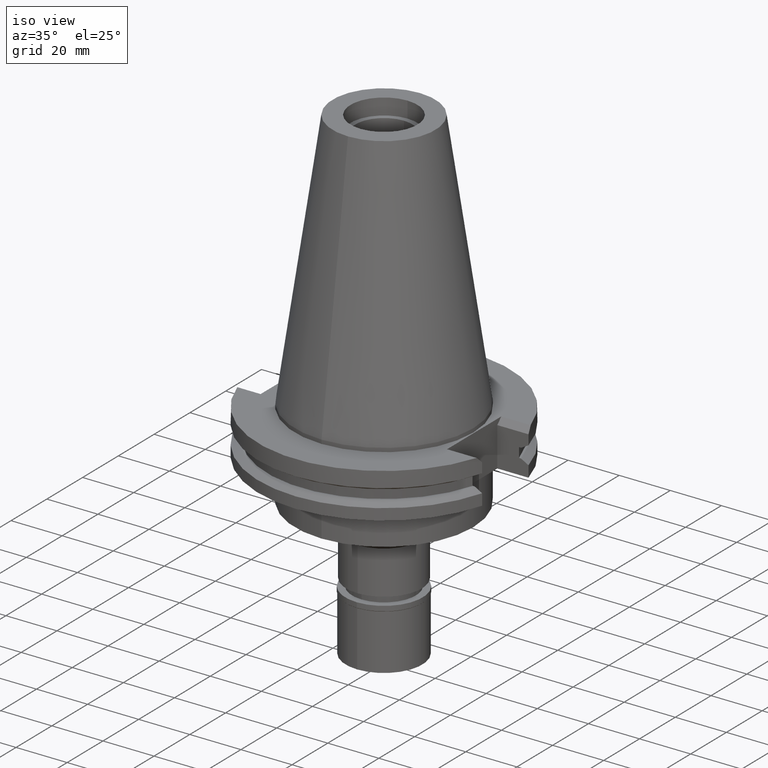
[diagram: clean part render]
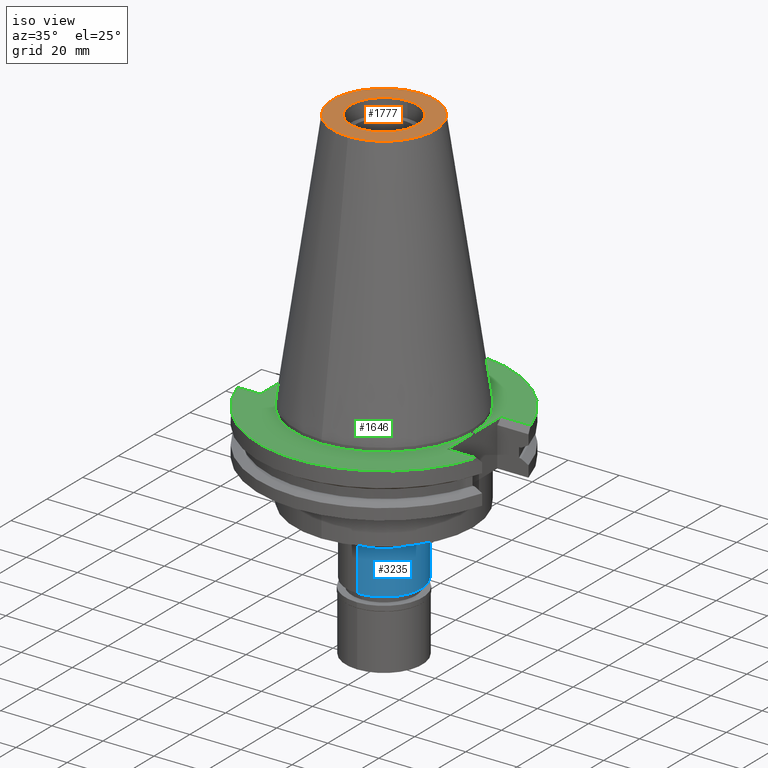
[diagram: same view with three faces highlighted in distinct colors, each labeled with its STEP entity id]
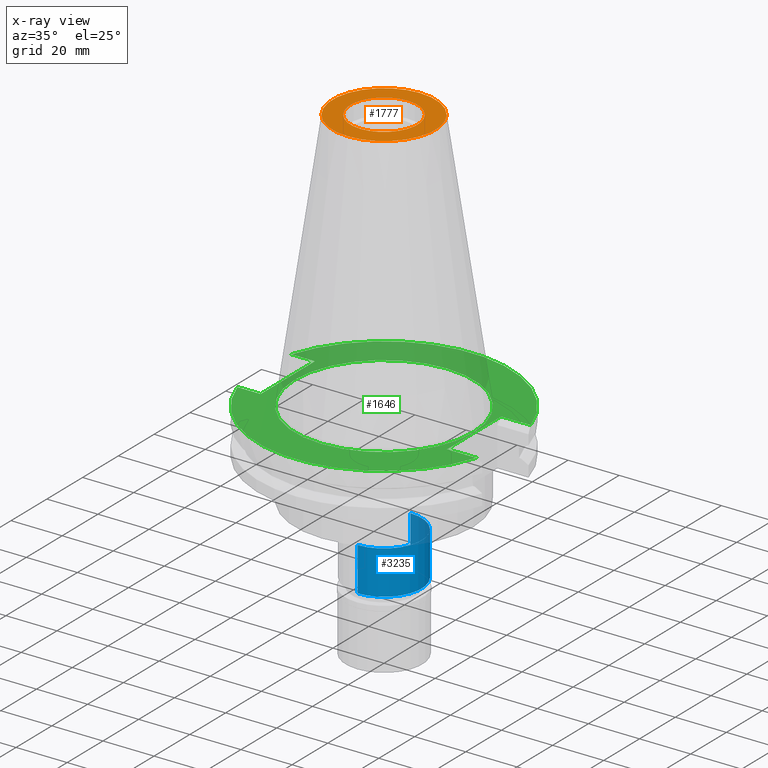
[diagram: x-ray of the same camera — body ghosted, the three highlighted faces saturated]
A machine part, iso view with three faces highlighted in distinct colors.
The next image is the same camera in x-ray (body ghosted, the three faces saturated) — at least one of them is partly hidden behind the body in this view.
Their STEP definitions:

[orange] entity #1777 — the highlighted planar face has unit normal (0, 0, -1).
#139 = AXIS2_PLACEMENT_3D ( 'NONE', #1916, #184, #172 ) ;
#146 = DIRECTION ( 'NONE',  ( 0.0000000000000000000, 0.0000000000000000000, -1.000000000000000000 ) ) ;
#172 = DIRECTION ( 'NONE',  ( 0.0000000000000000000, -1.000000000000000000, 0.0000000000000000000 ) ) ;
#184 = DIRECTION ( 'NONE',  ( 0.0000000000000000000, 0.0000000000000000000, -1.000000000000000000 ) ) ;
#189 = CIRCLE ( 'NONE', #2076, 20.10832422388000040 ) ;
#429 = CARTESIAN_POINT ( 'NONE',  ( 0.0000000000000000000, 1.846767373113999857E-14, 101.5999999999999943 ) ) ;
#492 = AXIS2_PLACEMENT_3D ( 'NONE', #3041, #1745, #699 ) ;
#555 = ORIENTED_EDGE ( 'NONE', *, *, #2346, .F. ) ;
#618 = AXIS2_PLACEMENT_3D ( 'NONE', #429, #146, #1201 ) ;
#699 = DIRECTION ( 'NONE',  ( 0.0000000000000000000, 1.000000000000000000, 0.0000000000000000000 ) ) ;
#865 = EDGE_CURVE ( 'NONE', #2394, #2873, #1958, .T. ) ;
#880 = EDGE_LOOP ( 'NONE', ( #946, #2479 ) ) ;
#929 = FACE_OUTER_BOUND ( 'NONE', #2639, .T. ) ;
#944 = CARTESIAN_POINT ( 'NONE',  ( 0.0000000000000000000, 1.846767373113999857E-14, 101.5999999999999943 ) ) ;
#946 = ORIENTED_EDGE ( 'NONE', *, *, #865, .F. ) ;
#1036 = CARTESIAN_POINT ( 'NONE',  ( 0.0000000000000000000, 2.579412320703999880E-14, 101.5999999999999943 ) ) ;
#1096 = ORIENTED_EDGE ( 'NONE', *, *, #1203, .F. ) ;
#1201 = DIRECTION ( 'NONE',  ( 0.0000000000000000000, -1.000000000000000000, 0.0000000000000000000 ) ) ;
#1203 = EDGE_CURVE ( 'NONE', #2157, #2324, #3035, .T. ) ;
#1290 = AXIS2_PLACEMENT_3D ( 'NONE', #1036, #2053, #3070 ) ;
#1745 = DIRECTION ( 'NONE',  ( 0.0000000000000000000, 0.0000000000000000000, 1.000000000000000000 ) ) ;
#1777 = ADVANCED_FACE ( 'NONE', ( #929, #3198 ), #1955, .F. ) ;
#1916 = CARTESIAN_POINT ( 'NONE',  ( 0.0000000000000000000, 2.468887947081000065E-14, 101.5999999999999943 ) ) ;
#1932 = CARTESIAN_POINT ( 'NONE',  ( 0.0000000000000000000, 20.10832422388000040, 101.5999999999999943 ) ) ;
#1950 = CARTESIAN_POINT ( 'NONE',  ( 0.0000000000000000000, 13.11500000000000021, 101.5999999999999943 ) ) ;
#1955 = PLANE ( 'NONE',  #139 ) ;
#1958 = CIRCLE ( 'NONE', #492, 13.11500000000000021 ) ;
#2053 = DIRECTION ( 'NONE',  ( 0.0000000000000000000, 0.0000000000000000000, 1.000000000000000000 ) ) ;
#2076 = AXIS2_PLACEMENT_3D ( 'NONE', #944, #2941, #2207 ) ;
#2157 = VERTEX_POINT ( 'NONE', #2838 ) ;
#2185 = CARTESIAN_POINT ( 'NONE',  ( 0.0000000000000000000, -13.11500000000000021, 101.5999999999999943 ) ) ;
#2207 = DIRECTION ( 'NONE',  ( 0.0000000000000000000, 1.000000000000000000, 0.0000000000000000000 ) ) ;
#2324 = VERTEX_POINT ( 'NONE', #1932 ) ;
#2346 = EDGE_CURVE ( 'NONE', #2324, #2157, #189, .T. ) ;
#2394 = VERTEX_POINT ( 'NONE', #1950 ) ;
#2479 = ORIENTED_EDGE ( 'NONE', *, *, #2658, .F. ) ;
#2639 = EDGE_LOOP ( 'NONE', ( #555, #1096 ) ) ;
#2658 = EDGE_CURVE ( 'NONE', #2873, #2394, #3110, .T. ) ;
#2838 = CARTESIAN_POINT ( 'NONE',  ( 0.0000000000000000000, -20.10832422388000040, 101.5999999999999943 ) ) ;
#2873 = VERTEX_POINT ( 'NONE', #2185 ) ;
#2941 = DIRECTION ( 'NONE',  ( 0.0000000000000000000, 0.0000000000000000000, -1.000000000000000000 ) ) ;
#3035 = CIRCLE ( 'NONE', #618, 20.10832422388000040 ) ;
#3041 = CARTESIAN_POINT ( 'NONE',  ( 0.0000000000000000000, 2.579412320703999880E-14, 101.5999999999999943 ) ) ;
#3070 = DIRECTION ( 'NONE',  ( 0.0000000000000000000, -1.000000000000000000, 0.0000000000000000000 ) ) ;
#3110 = CIRCLE ( 'NONE', #1290, 13.11500000000000021 ) ;
#3198 = FACE_BOUND ( 'NONE', #880, .T. ) ;

[blue] entity #3235 — the highlighted cylindrical surface (partial cylindrical patch) has radius 14.75 mm, axis along (0, 0, -1).
#44 = DIRECTION ( 'NONE',  ( 0.0000000000000000000, 0.0000000000000000000, -1.000000000000000000 ) ) ;
#52 = ORIENTED_EDGE ( 'NONE', *, *, #2405, .T. ) ;
#107 = DIRECTION ( 'NONE',  ( 0.0000000000000000000, 0.0000000000000000000, -1.000000000000000000 ) ) ;
#121 = ORIENTED_EDGE ( 'NONE', *, *, #209, .F. ) ;
#167 = DIRECTION ( 'NONE',  ( 0.0000000000000000000, 0.0000000000000000000, 1.000000000000000000 ) ) ;
#196 = CARTESIAN_POINT ( 'NONE',  ( 0.0000000000000000000, 14.75000000000000000, -45.00000000000000000 ) ) ;
#209 = EDGE_CURVE ( 'NONE', #2548, #2393, #1938, .T. ) ;
#294 = CARTESIAN_POINT ( 'NONE',  ( 0.0000000000000000000, 2.579412320703999880E-14, 110.6250000000000000 ) ) ;
#387 = CARTESIAN_POINT ( 'NONE',  ( 0.0000000000000000000, 14.75000000000000000, -62.10000000000000142 ) ) ;
#406 = CIRCLE ( 'NONE', #2491, 14.75000000000000000 ) ;
#653 = VECTOR ( 'NONE', #107, 1000.000000000000000 ) ;
#706 = VECTOR ( 'NONE', #2992, 1000.000000000000000 ) ;
#889 = AXIS2_PLACEMENT_3D ( 'NONE', #294, #44, #1363 ) ;
#941 = EDGE_LOOP ( 'NONE', ( #1953, #2963, #52, #121 ) ) ;
#971 = DIRECTION ( 'NONE',  ( 0.0000000000000000000, 1.000000000000000000, 0.0000000000000000000 ) ) ;
#1233 = CARTESIAN_POINT ( 'NONE',  ( 0.0000000000000000000, 0.0000000000000000000, -45.00000000000000000 ) ) ;
#1317 = EDGE_CURVE ( 'NONE', #2548, #1529, #406, .T. ) ;
#1320 = CARTESIAN_POINT ( 'NONE',  ( 0.0000000000000000000, -14.75000000000000000, -62.10000000000000142 ) ) ;
#1363 = DIRECTION ( 'NONE',  ( 0.0000000000000000000, -1.000000000000000000, 0.0000000000000000000 ) ) ;
#1529 = VERTEX_POINT ( 'NONE', #2015 ) ;
#1548 = CIRCLE ( 'NONE', #2981, 14.75000000000000000 ) ;
#1938 = LINE ( 'NONE', #2722, #653 ) ;
#1953 = ORIENTED_EDGE ( 'NONE', *, *, #1317, .T. ) ;
#1974 = LINE ( 'NONE', #3243, #706 ) ;
#2015 = CARTESIAN_POINT ( 'NONE',  ( 0.0000000000000000000, -14.75000000000000000, -45.00000000000000000 ) ) ;
#2128 = VERTEX_POINT ( 'NONE', #1320 ) ;
#2232 = DIRECTION ( 'NONE',  ( 0.0000000000000000000, 0.0000000000000000000, -1.000000000000000000 ) ) ;
#2393 = VERTEX_POINT ( 'NONE', #387 ) ;
#2405 = EDGE_CURVE ( 'NONE', #2128, #2393, #1548, .T. ) ;
#2491 = AXIS2_PLACEMENT_3D ( 'NONE', #1233, #2232, #971 ) ;
#2548 = VERTEX_POINT ( 'NONE', #196 ) ;
#2695 = CARTESIAN_POINT ( 'NONE',  ( 0.0000000000000000000, 2.579412320703999880E-14, -62.10000000000000142 ) ) ;
#2722 = CARTESIAN_POINT ( 'NONE',  ( 0.0000000000000000000, 14.75000000000000000, -45.00000000000000000 ) ) ;
#2850 = CYLINDRICAL_SURFACE ( 'NONE', #889, 14.75000000000000000 ) ;
#2901 = EDGE_CURVE ( 'NONE', #1529, #2128, #1974, .T. ) ;
#2917 = FACE_OUTER_BOUND ( 'NONE', #941, .T. ) ;
#2963 = ORIENTED_EDGE ( 'NONE', *, *, #2901, .T. ) ;
#2981 = AXIS2_PLACEMENT_3D ( 'NONE', #2695, #167, #3208 ) ;
#2992 = DIRECTION ( 'NONE',  ( 0.0000000000000000000, 0.0000000000000000000, -1.000000000000000000 ) ) ;
#3208 = DIRECTION ( 'NONE',  ( 0.0000000000000000000, -1.000000000000000000, 0.0000000000000000000 ) ) ;
#3235 = ADVANCED_FACE ( 'NONE', ( #2917 ), #2850, .T. ) ;
#3243 = CARTESIAN_POINT ( 'NONE',  ( 0.0000000000000000000, -14.75000000000000000, -45.00000000000000000 ) ) ;

[green] entity #1646 — the highlighted planar face has unit normal (0, 0, -1).
#45 = ORIENTED_EDGE ( 'NONE', *, *, #1428, .F. ) ;
#63 = DIRECTION ( 'NONE',  ( 0.0000000000000000000, -1.000000000000000000, 0.0000000000000000000 ) ) ;
#150 = ORIENTED_EDGE ( 'NONE', *, *, #2808, .F. ) ;
#170 = VERTEX_POINT ( 'NONE', #287 ) ;
#287 = CARTESIAN_POINT ( 'NONE',  ( -37.67999999999999972, 15.15499999999999936, -1.500000000000000000 ) ) ;
#297 = CARTESIAN_POINT ( 'NONE',  ( 35.27000000000000313, 15.15499999999999936, -1.500000000000000000 ) ) ;
#323 = LINE ( 'NONE', #2881, #1973 ) ;
#352 = ORIENTED_EDGE ( 'NONE', *, *, #2708, .F. ) ;
#372 = VERTEX_POINT ( 'NONE', #3000 ) ;
#462 = CIRCLE ( 'NONE', #2073, 49.21249999999999858 ) ;
#471 = VERTEX_POINT ( 'NONE', #2288 ) ;
#495 = ORIENTED_EDGE ( 'NONE', *, *, #2817, .T. ) ;
#554 = LINE ( 'NONE', #829, #758 ) ;
#603 = ORIENTED_EDGE ( 'NONE', *, *, #1213, .F. ) ;
#660 = CARTESIAN_POINT ( 'NONE',  ( 35.27000000000000313, -15.15499999999999936, -1.500000000000000000 ) ) ;
#693 = CARTESIAN_POINT ( 'NONE',  ( 0.0000000000000000000, 2.579412320703999880E-14, -1.500000000000000000 ) ) ;
#703 = ORIENTED_EDGE ( 'NONE', *, *, #1283, .F. ) ;
#749 = EDGE_LOOP ( 'NONE', ( #703, #150 ) ) ;
#758 = VECTOR ( 'NONE', #1078, 1000.000000000000000 ) ;
#829 = CARTESIAN_POINT ( 'NONE',  ( -37.67999999999999972, 15.15499999999999936, -1.500000000000000000 ) ) ;
#830 = VERTEX_POINT ( 'NONE', #660 ) ;
#836 = DIRECTION ( 'NONE',  ( -1.000000000000000000, 1.107685286787000022E-14, 0.0000000000000000000 ) ) ;
#860 = DIRECTION ( 'NONE',  ( 0.0000000000000000000, 0.0000000000000000000, -1.000000000000000000 ) ) ;
#877 = EDGE_LOOP ( 'NONE', ( #2927, #2279, #603, #2382, #495, #1516, #352, #45 ) ) ;
#972 = VERTEX_POINT ( 'NONE', #1269 ) ;
#984 = DIRECTION ( 'NONE',  ( 0.0000000000000000000, 0.0000000000000000000, -1.000000000000000000 ) ) ;
#1064 = CARTESIAN_POINT ( 'NONE',  ( -46.82089417396999664, 15.15499999999999936, -1.500000000000000000 ) ) ;
#1078 = DIRECTION ( 'NONE',  ( -1.000000000000000000, -1.088252211580000080E-14, 0.0000000000000000000 ) ) ;
#1144 = LINE ( 'NONE', #297, #3274 ) ;
#1213 = EDGE_CURVE ( 'NONE', #830, #471, #1457, .T. ) ;
#1265 = CARTESIAN_POINT ( 'NONE',  ( -37.67999999999999972, -15.15499999999999936, -1.500000000000000000 ) ) ;
#1269 = CARTESIAN_POINT ( 'NONE',  ( 46.82089417396999664, 15.15499999999999936, -1.500000000000000000 ) ) ;
#1271 = EDGE_CURVE ( 'NONE', #471, #372, #462, .T. ) ;
#1283 = EDGE_CURVE ( 'NONE', #2353, #3071, #2178, .T. ) ;
#1285 = CARTESIAN_POINT ( 'NONE',  ( 0.0000000000000000000, -34.92499999999999716, -1.500000000000000000 ) ) ;
#1316 = CIRCLE ( 'NONE', #1855, 49.21249999999999858 ) ;
#1340 = DIRECTION ( 'NONE',  ( 0.0000000000000000000, -1.000000000000000000, 0.0000000000000000000 ) ) ;
#1428 = EDGE_CURVE ( 'NONE', #2707, #170, #2540, .T. ) ;
#1457 = LINE ( 'NONE', #2669, #2925 ) ;
#1477 = DIRECTION ( 'NONE',  ( 0.0000000000000000000, -1.000000000000000000, 0.0000000000000000000 ) ) ;
#1516 = ORIENTED_EDGE ( 'NONE', *, *, #3295, .F. ) ;
#1646 = ADVANCED_FACE ( 'NONE', ( #2103, #3111 ), #1837, .F. ) ;
#1650 = EDGE_CURVE ( 'NONE', #2707, #372, #323, .T. ) ;
#1676 = DIRECTION ( 'NONE',  ( 0.0000000000000000000, 1.000000000000000000, 0.0000000000000000000 ) ) ;
#1690 = DIRECTION ( 'NONE',  ( 0.0000000000000000000, 0.0000000000000000000, 1.000000000000000000 ) ) ;
#1760 = CARTESIAN_POINT ( 'NONE',  ( 35.27000000000000313, 15.15499999999999936, -1.500000000000000000 ) ) ;
#1837 = PLANE ( 'NONE',  #2867 ) ;
#1849 = DIRECTION ( 'NONE',  ( 0.0000000000000000000, 0.0000000000000000000, -1.000000000000000000 ) ) ;
#1855 = AXIS2_PLACEMENT_3D ( 'NONE', #2337, #860, #2884 ) ;
#1884 = AXIS2_PLACEMENT_3D ( 'NONE', #2094, #3102, #63 ) ;
#1943 = DIRECTION ( 'NONE',  ( 0.0000000000000000000, -1.000000000000000000, 0.0000000000000000000 ) ) ;
#1973 = VECTOR ( 'NONE', #836, 1000.000000000000000 ) ;
#2073 = AXIS2_PLACEMENT_3D ( 'NONE', #693, #984, #1943 ) ;
#2090 = VECTOR ( 'NONE', #1477, 1000.000000000000000 ) ;
#2094 = CARTESIAN_POINT ( 'NONE',  ( 0.0000000000000000000, 2.579412320703999880E-14, -1.500000000000000000 ) ) ;
#2103 = FACE_OUTER_BOUND ( 'NONE', #877, .T. ) ;
#2178 = CIRCLE ( 'NONE', #2989, 34.92499999999999716 ) ;
#2243 = VERTEX_POINT ( 'NONE', #2871 ) ;
#2254 = LINE ( 'NONE', #1760, #2090 ) ;
#2279 = ORIENTED_EDGE ( 'NONE', *, *, #1271, .F. ) ;
#2288 = CARTESIAN_POINT ( 'NONE',  ( 46.82089417396999664, -15.15499999999999936, -1.500000000000000000 ) ) ;
#2304 = DIRECTION ( 'NONE',  ( 0.0000000000000000000, 1.000000000000000000, 0.0000000000000000000 ) ) ;
#2337 = CARTESIAN_POINT ( 'NONE',  ( 0.0000000000000000000, 2.579412320703999880E-14, -1.500000000000000000 ) ) ;
#2353 = VERTEX_POINT ( 'NONE', #2996 ) ;
#2382 = ORIENTED_EDGE ( 'NONE', *, *, #2568, .F. ) ;
#2540 = LINE ( 'NONE', #1265, #2709 ) ;
#2568 = EDGE_CURVE ( 'NONE', #2243, #830, #2254, .T. ) ;
#2669 = CARTESIAN_POINT ( 'NONE',  ( 35.27000000000000313, -15.15499999999999936, -1.500000000000000000 ) ) ;
#2707 = VERTEX_POINT ( 'NONE', #2886 ) ;
#2708 = EDGE_CURVE ( 'NONE', #170, #3247, #554, .T. ) ;
#2709 = VECTOR ( 'NONE', #2304, 1000.000000000000000 ) ;
#2808 = EDGE_CURVE ( 'NONE', #3071, #2353, #2834, .T. ) ;
#2817 = EDGE_CURVE ( 'NONE', #2243, #972, #1144, .T. ) ;
#2834 = CIRCLE ( 'NONE', #1884, 34.92499999999999716 ) ;
#2852 = DIRECTION ( 'NONE',  ( 1.000000000000000000, 0.0000000000000000000, 0.0000000000000000000 ) ) ;
#2867 = AXIS2_PLACEMENT_3D ( 'NONE', #2894, #1849, #1340 ) ;
#2871 = CARTESIAN_POINT ( 'NONE',  ( 35.27000000000000313, 15.15499999999999936, -1.500000000000000000 ) ) ;
#2881 = CARTESIAN_POINT ( 'NONE',  ( -37.67999999999999972, -15.15499999999999936, -1.500000000000000000 ) ) ;
#2884 = DIRECTION ( 'NONE',  ( 0.0000000000000000000, 1.000000000000000000, 0.0000000000000000000 ) ) ;
#2886 = CARTESIAN_POINT ( 'NONE',  ( -37.67999999999999972, -15.15499999999999936, -1.500000000000000000 ) ) ;
#2894 = CARTESIAN_POINT ( 'NONE',  ( 0.0000000000000000000, 1.206277097159999845E-14, -1.500000000000000000 ) ) ;
#2925 = VECTOR ( 'NONE', #3006, 1000.000000000000000 ) ;
#2927 = ORIENTED_EDGE ( 'NONE', *, *, #1650, .T. ) ;
#2989 = AXIS2_PLACEMENT_3D ( 'NONE', #2990, #1690, #1676 ) ;
#2990 = CARTESIAN_POINT ( 'NONE',  ( 0.0000000000000000000, 2.579412320703999880E-14, -1.500000000000000000 ) ) ;
#2996 = CARTESIAN_POINT ( 'NONE',  ( 0.0000000000000000000, 34.92499999999999716, -1.500000000000000000 ) ) ;
#3000 = CARTESIAN_POINT ( 'NONE',  ( -46.82089417396999664, -15.15499999999999936, -1.500000000000000000 ) ) ;
#3006 = DIRECTION ( 'NONE',  ( 1.000000000000000000, 0.0000000000000000000, 0.0000000000000000000 ) ) ;
#3071 = VERTEX_POINT ( 'NONE', #1285 ) ;
#3102 = DIRECTION ( 'NONE',  ( 0.0000000000000000000, 0.0000000000000000000, 1.000000000000000000 ) ) ;
#3111 = FACE_BOUND ( 'NONE', #749, .T. ) ;
#3247 = VERTEX_POINT ( 'NONE', #1064 ) ;
#3274 = VECTOR ( 'NONE', #2852, 1000.000000000000000 ) ;
#3295 = EDGE_CURVE ( 'NONE', #3247, #972, #1316, .T. ) ;